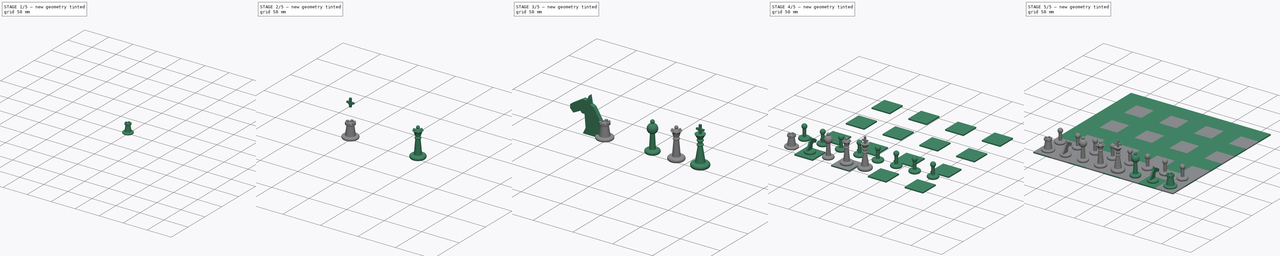
[diagram: build sequence overview — one tinted view per stage of 5, left to right]
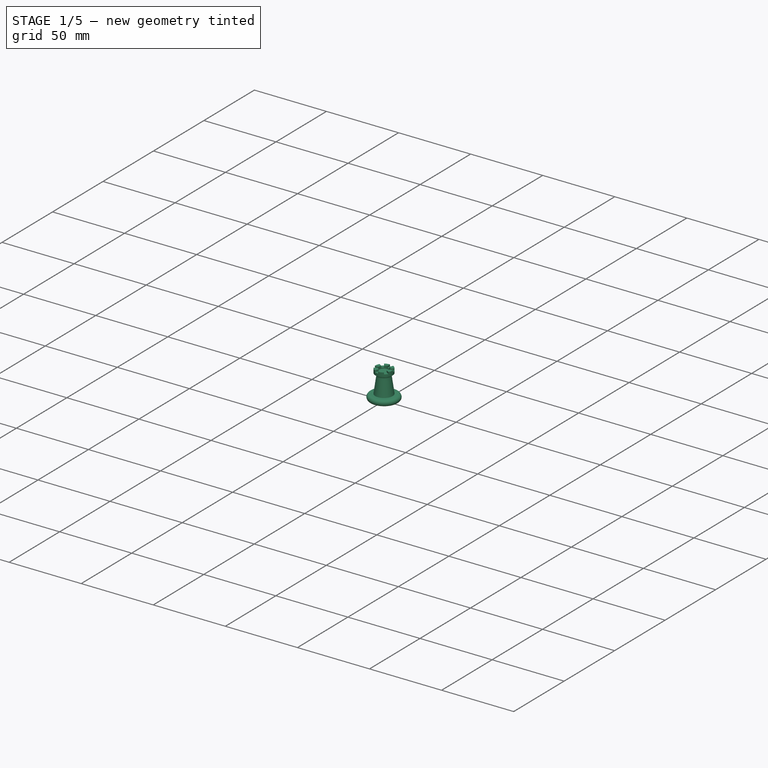
[diagram: stage 1 of 5 — iso view after this stage's code; geometry added in this stage tinted green]
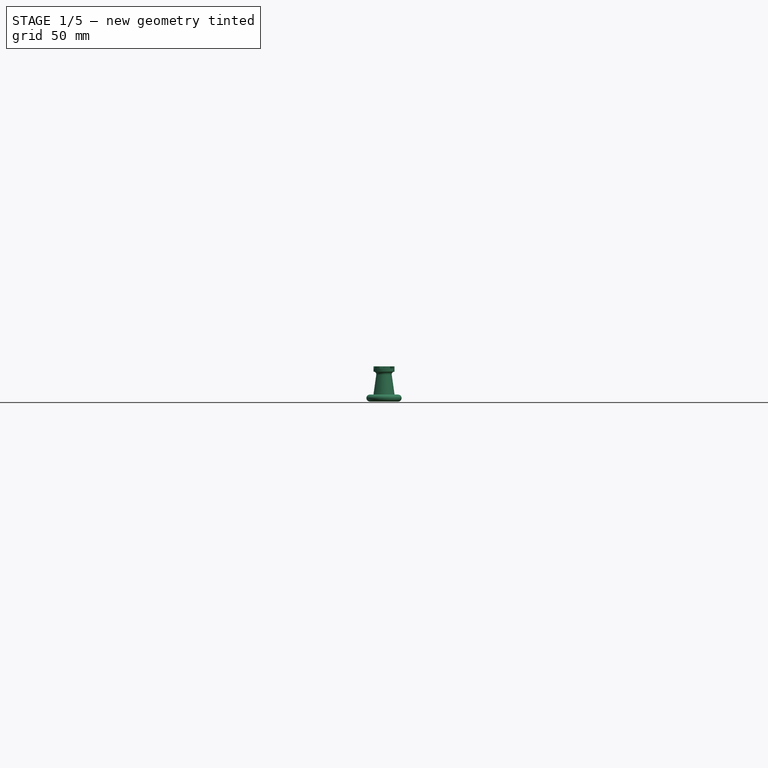
[diagram: stage 1 of 5 — front view after this stage's code; geometry added in this stage tinted green]
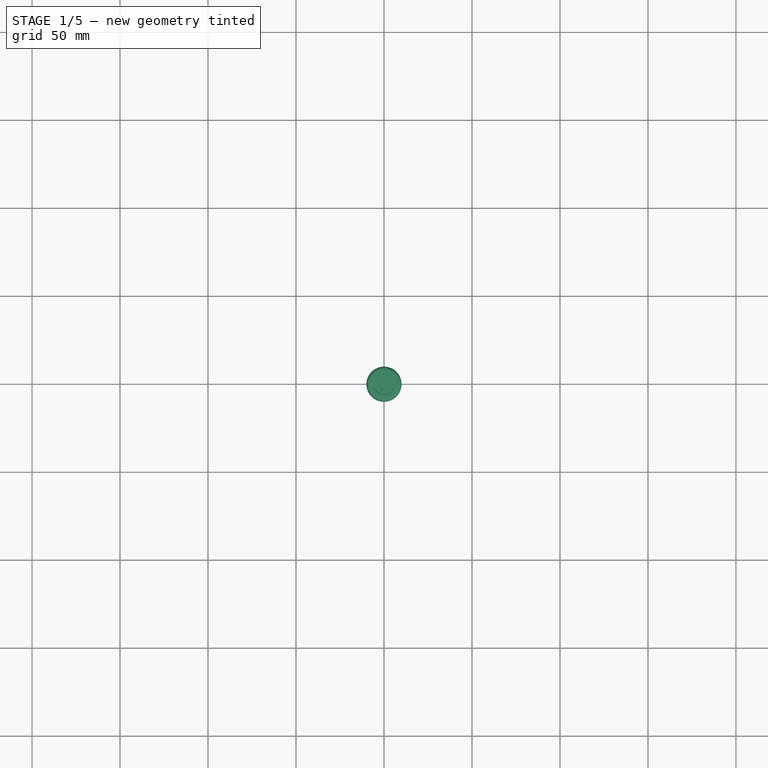
[diagram: stage 1 of 5 — top view after this stage's code; geometry added in this stage tinted green]
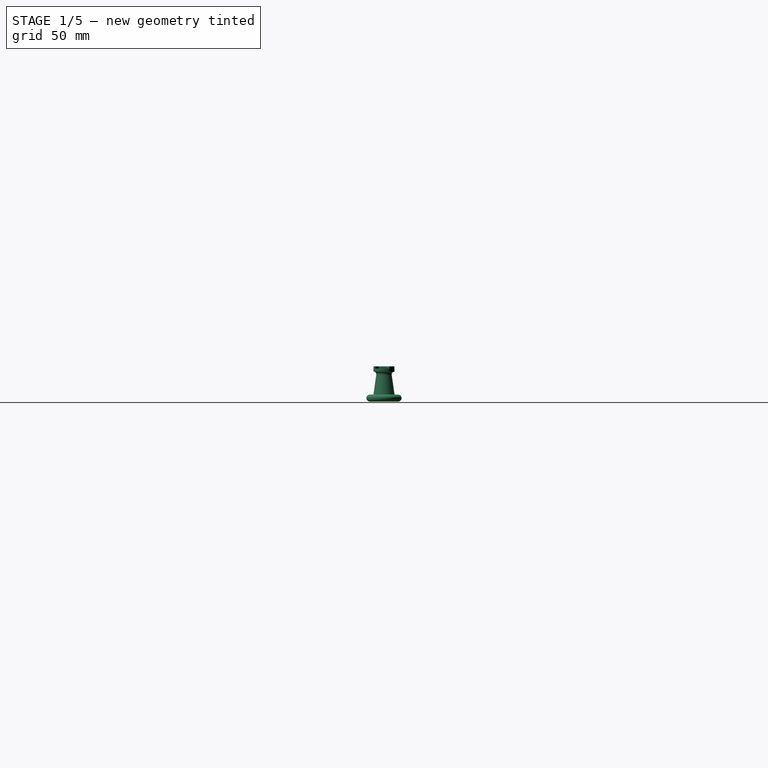
[diagram: stage 1 of 5 — right view after this stage's code; geometry added in this stage tinted green]
FCSTD DOCUMENT  (FreeCAD 0.16R6706 (Git))
Label: assembly-v001
License: All rights reserved
LicenseURL: http://en.wikipedia.org/wiki/All_rights_reserved
objects: Sketcher::SketchObject×27, Raytracing::RayFeature×10, Part::FeaturePython×10, PartDesign::Revolution×9, Raytracing::LuxFeature×9, PartDesign::Pocket×8, PartDesign::Pad×7, App::DocumentObjectGroup×7, Part::MultiFuse×4, Part::Cut×2, Raytracing::RayProject×2, Part::Cylinder×1, Part::Loft×1, Part::Extrusion×1, PartDesign::PolarPattern×1, PartDesign::Fillet×1, Part::Feature×1, Raytracing::LuxProject×1
note: 97 computed .brp shape members not serialized (recipe doc carries the construction recipe); baked Part::Feature solids carry a one-line shape summary decoded from their .brp

FEATURE [Sketcher::SketchObject] Sketch009
  Placement = pos=(0,0,4) rot=(0,0,1;0rad)
  sketch-geometry (1):
    g0: Circle CenterX=0 CenterY=0 CenterZ=0 NormalX=0 NormalY=0 NormalZ=1 Radius=6
  constraints (2):
    c: Coincident(g0,g-1)
    c: Radius(g0) = 6
FEATURE [Sketcher::SketchObject] Sketch010
  Placement = pos=(0,0,17) rot=(0,0,1;0rad)
  sketch-geometry (1):
    g0: Circle CenterX=0 CenterY=0 CenterZ=0 NormalX=0 NormalY=0 NormalZ=1 Radius=6
  constraints (2):
    c: Coincident(g0,g-1)
    c: Radius(g0) = 6
FEATURE [Sketcher::SketchObject] Sketch011
  Placement = pos=(0,0,18) rot=(0,0,1;0rad)
  sketch-geometry (1):
    g0: Circle CenterX=0 CenterY=0 CenterZ=0 NormalX=0 NormalY=0 NormalZ=1 Radius=4
  constraints (2):
    c: Coincident(g0,g-1)
    c: Radius(g0) = 4
FEATURE [Part::Loft] Loft
  Closed = false
  Ruled = false
  Sections = -> [Sketch011,Sketch009]
  Solid = true
FEATURE [Part::Extrusion] Extrude002
  Base = -> Sketch010
  Dir = (0,0,3)
  Solid = true
FEATURE [Sketcher::SketchObject] Sketch012
  Placement = pos=(0,0,20) rot=(0,0,1;0rad)
  Support = -> Extrude002 [Face3]
  sketch-geometry (1):
    g0: Circle CenterX=0 CenterY=0 CenterZ=0 NormalX=0 NormalY=0 NormalZ=1 Radius=3.5
  constraints (2):
    c: Coincident(g0,g-1)
    c: Radius(g0) = 3.5
FEATURE [PartDesign::Pocket] Pocket
  Length = 5
  Sketch = -> Sketch012
  Type = 0
FEATURE [Sketcher::SketchObject] Sketch013
  Placement = pos=(0,0,0) rot=(1,0,0;1.5708rad)
  sketch-geometry (5):
    g0: LineSegment StartX=0 StartY=0 StartZ=0 EndX=8 EndY=0 EndZ=0
    g1: LineSegment [constr] StartX=8 StartY=0 StartZ=0 EndX=8 EndY=4 EndZ=0
    g2: LineSegment StartX=8 StartY=4 StartZ=0 EndX=0 EndY=4 EndZ=0
    g3: LineSegment StartX=0 StartY=4 StartZ=0 EndX=0 EndY=0 EndZ=0
    g4: ArcOfCircle CenterX=8 CenterY=2 CenterZ=0 NormalX=0 NormalY=0 NormalZ=1 Radius=2 StartAngle=4.71239 EndAngle=7.85398
  constraints (14):
    c: Coincident(g0,g1)
    c: Coincident(g1,g2)
    c: Coincident(g2,g3)
    c: Coincident(g3,g0)
    c: Horizontal(g0)
    c: Horizontal(g2)
    c: Vertical(g1)
    c: Vertical(g3)
    c: Coincident(g0,g-1)
    c: PointOnObject(g4,g1)
    c: Coincident(g4,g1)
    c: Coincident(g4,g0)
    c: DistanceX(g2) = -8
    c: DistanceY(g3) = -4
FEATURE [PartDesign::Revolution] Revolution001006
  Angle = 360
  Axis = (0,0,1)
  Base = (0,0,0)
  Placement = pos=(0,0,0) rot=(1,0,0;1.5708rad)
  ReferenceAxis = -> Sketch013 [V_Axis]
  Sketch = -> Sketch013
FEATURE [Sketcher::SketchObject] Sketch014
  ExternalGeometry = -> [Pocket]
  Placement = pos=(0,0,20) rot=(0,0,1;0rad)
  Support = -> Pocket [Face3]
  sketch-geometry (3):
    g0: ArcOfCircle CenterX=0 CenterY=0 CenterZ=0 NormalX=0 NormalY=0 NormalZ=1 Radius=6 StartAngle=1.13446 EndAngle=1.5708
    g1: LineSegment StartX=0 StartY=0 StartZ=0 EndX=0 EndY=6 EndZ=0
    g2: LineSegment StartX=0 StartY=0 StartZ=0 EndX=2.53571 EndY=5.43785 EndZ=0
  constraints (8):
    c: Coincident(g0,g-1)
    c: PointOnObject(g0,g-3)
    c: Coincident(g1,g-1)
    c: Coincident(g1,g0)
    c: Coincident(g2,g-1)
    c: Coincident(g2,g0)
    c: Angle(g2,g1) = 0.436332
    c: Parallel(g1,g-2)
FEATURE [PartDesign::Pocket] Pocket001
  Length = 1.2
  Sketch = -> Sketch014
  Type = 0
FEATURE [PartDesign::PolarPattern] PolarPattern
  Angle = 360
  Axis = -> Sketch014 [N_Axis]
  Occurrences = 6
  Originals = -> [Pocket001]
FEATURE [Part::MultiFuse] Fusion002
  Shapes = -> [PolarPattern,Revolution001006,Loft]
FEATURE [PartDesign::Fillet] Fillet
  Base = -> Fusion002 [Edge5]
  Radius = 1.5
FEATURE [App::DocumentObjectGroup] Group002  label="queen"
  Group = -> [Fusion,Fusion004,Pocket006]
FEATURE [Sketcher::SketchObject] Sketch026
  Placement = pos=(0,0,0) rot=(1,0,0;3.14159rad)
  Support = -> Fillet [Face7]
  sketch-geometry (1):
    g0: Circle CenterX=0 CenterY=0 CenterZ=0 NormalX=0 NormalY=0 NormalZ=1 Radius=3.05
  constraints (2):
    c: Coincident(g0,g-1)
    c: Radius(g0) = 3.05
FEATURE [PartDesign::Pocket] Pocket007
  Length = 3.1
  Sketch = -> Sketch026
  Type = 0
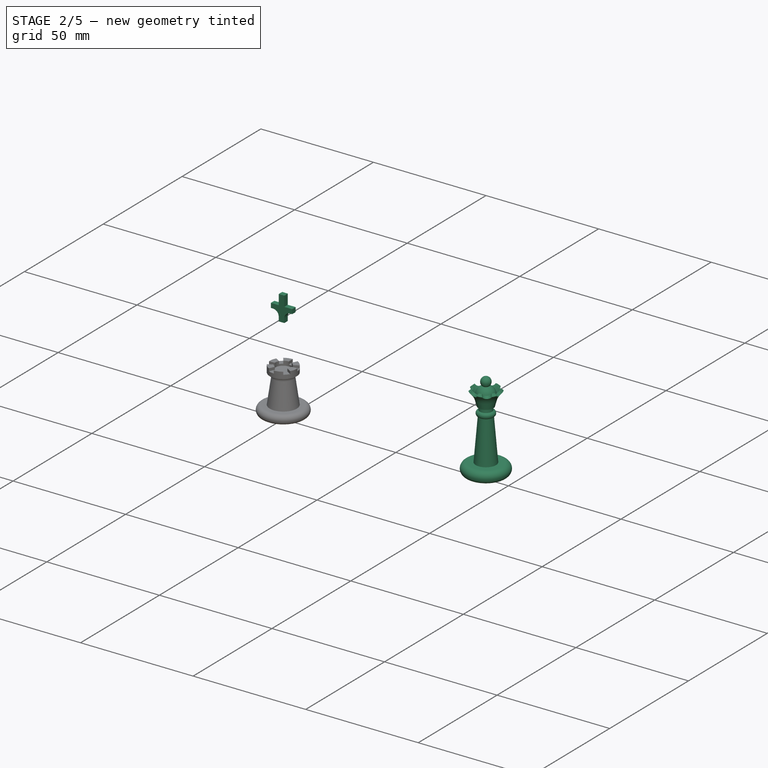
[diagram: stage 2 of 5 — iso view after this stage's code; geometry added in this stage tinted green]
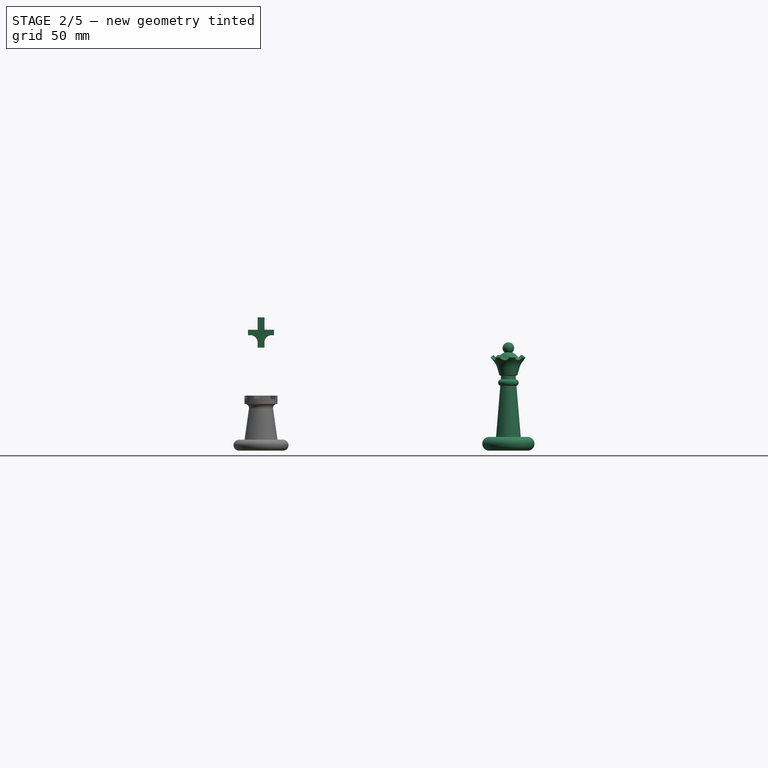
[diagram: stage 2 of 5 — front view after this stage's code; geometry added in this stage tinted green]
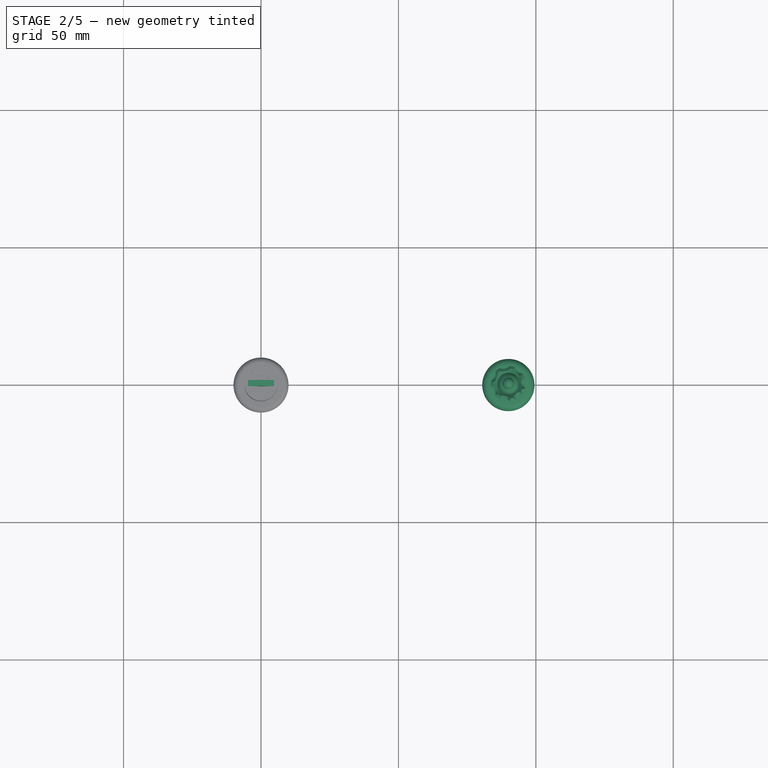
[diagram: stage 2 of 5 — top view after this stage's code; geometry added in this stage tinted green]
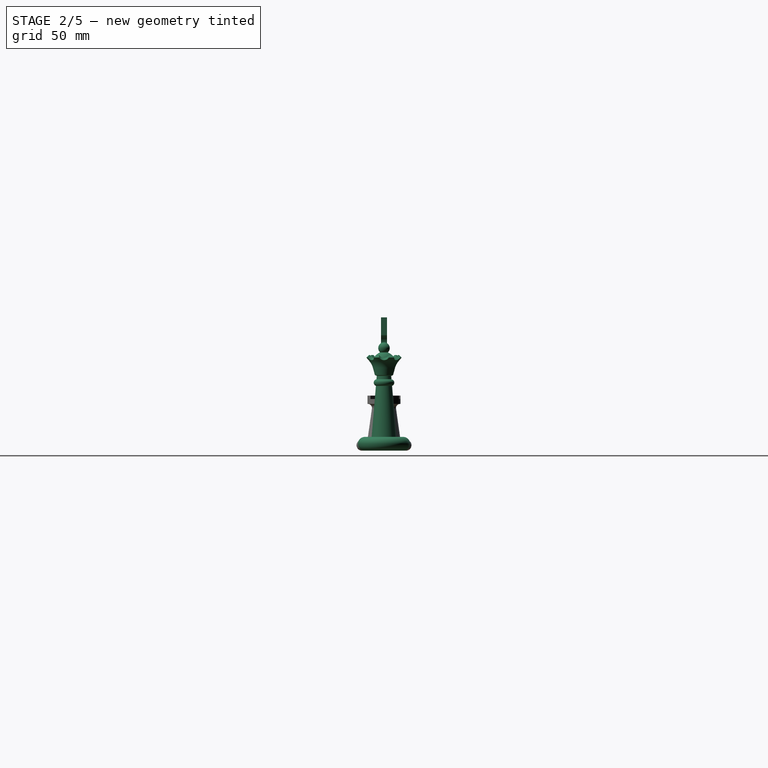
[diagram: stage 2 of 5 — right view after this stage's code; geometry added in this stage tinted green]
FEATURE [Sketcher::SketchObject] Sketch003
  Placement = pos=(0,0,0) rot=(1,0,0;1.5708rad)
  sketch-geometry (10):
    g0: LineSegment StartX=0 StartY=0 StartZ=0 EndX=7 EndY=0 EndZ=0
    g1: LineSegment [constr] StartX=7 StartY=0 StartZ=0 EndX=7 EndY=5 EndZ=0
    g2: LineSegment StartX=7 StartY=5 StartZ=0 EndX=0 EndY=5 EndZ=0
    g3: LineSegment StartX=0 StartY=5 StartZ=0 EndX=0 EndY=0 EndZ=0
    g4: LineSegment StartX=0 StartY=5 StartZ=0 EndX=4.5 EndY=5 EndZ=0
    g5: LineSegment StartX=4.5 StartY=5 StartZ=0 EndX=2.5 EndY=28.8775 EndZ=0
    g6: ArcOfCircle CenterX=7 CenterY=2.5 CenterZ=0 NormalX=0 NormalY=0 NormalZ=1 Radius=2.5 StartAngle=4.71239 EndAngle=7.85398
    g7: ArcOfCircle CenterX=0 CenterY=32 CenterZ=0 NormalX=0 NormalY=0 NormalZ=1 Radius=4 StartAngle=5.38752 EndAngle=7.49641
    g8: LineSegment StartX=0 StartY=5 StartZ=0 EndX=0 EndY=39.4122 EndZ=0
    g9: ArcOfCircle CenterX=0 CenterY=37.3122 CenterZ=0 NormalX=0 NormalY=0 NormalZ=1 Radius=2.1 StartAngle=5.44212 EndAngle=7.85398
  constraints (31):
    c: Coincident(g0,g1)
    c: Coincident(g1,g2)
    c: Coincident(g2,g3)
    c: Coincident(g3,g0)
    c: Horizontal(g0)
    c: Horizontal(g2)
    c: Vertical(g1)
    c: Vertical(g3)
    c: Coincident(g0,g-1)
    c: Coincident(g4,g5)
    c: Horizontal(g4)
    c: Coincident(g4,g2)
    c: DistanceX(g0) = 7
    c: DistanceY(g1) = 5
    c: Coincident(g6,g1)
    c: Coincident(g6,g0)
    c: PointOnObject(g6,g1)
    c: PointOnObject(g8,g-2)
    c: Radius(g7) = 4
    c: Coincident(g5,g7)
    c: DistanceX(g4,g2) = -4.5
    c: Coincident(g8,g2)
    c: Perpendicular(g7,g8)
    c: DistanceY(g-1,g7) = 32
    c: DistanceX(g8,g5) = 2.5
    c: PointOnObject(g9,g-2)
    c: Radius(g9) = 2.1
    c: PointOnObject(g9,g-2)
    c: Coincident(g7,g9)
    c: DistanceX(g7,g9) = -1.4
    c: Coincident(g9,g8)
FEATURE [PartDesign::Revolution] Revolution001002
  Angle = 360
  Axis = (0,0,1)
  Base = (0,0,0)
  Placement = pos=(0,0,0) rot=(1,0,0;1.5708rad)
  ReferenceAxis = -> Sketch003 [V_Axis]
  Reversed = true
  Sketch = -> Sketch003
FEATURE [Sketcher::SketchObject] Sketch004
  Placement = pos=(0,0,0) rot=(1,0,0;1.5708rad)
  sketch-geometry (7):
    g0: LineSegment StartX=5.45034 StartY=34.8175 StartZ=0 EndX=6.43773 EndY=33.9113 EndZ=0
    g1: LineSegment StartX=0.665482 StartY=28.4264 StartZ=0 EndX=5.45034 EndY=34.8175 EndZ=0
    g2: LineSegment StartX=5.30057 StartY=32.544 StartZ=0 EndX=6.43773 EndY=33.9113 EndZ=0
    g3: ArcOfCircle CenterX=10.3814 CenterY=28.3184 CenterZ=0 NormalX=0 NormalY=0 NormalZ=1 Radius=6.60836 StartAngle=2.44782 EndAngle=2.89671
    g4: LineSegment StartX=0.665482 StartY=28.4264 StartZ=0 EndX=1.68594 EndY=26.7963 EndZ=0
    g5: LineSegment StartX=1.68594 StartY=26.7963 StartZ=0 EndX=3.30092 EndY=27.4826 EndZ=0
    g6: LineSegment StartX=3.97015 StartY=29.9205 StartZ=0 EndX=3.30092 EndY=27.4826 EndZ=0
  constraints (21):
    c: Coincident(g1,g0)
    c: Coincident(g2,g0)
    c: Tangent(g2,g3) = 1.5708
    c: Coincident(g4,g5)
    c: DistanceX(g4) = 1.68594
    c: DistanceY(g4) = 26.7963
    c: DistanceX(g5) = 3.30092
    c: DistanceY(g5) = 27.4826
    c: DistanceX(g1) = 0.665482
    c: DistanceY(g1) = 28.4264
    c: DistanceX(g0) = 5.45034
    c: DistanceY(g0) = 34.8175
    c: DistanceX(g0) = 6.43773
    c: DistanceY(g0) = 33.9113
    c: DistanceX(g3) = 10.3814
    c: DistanceY(g3) = 28.3184
    c: Coincident(g4,g1)
    c: Coincident(g6,g3)
    c: Coincident(g6,g5)
    c: DistanceX(g3) = 3.97015
    c: DistanceY(g3) = 29.9205
FEATURE [PartDesign::Revolution] Revolution001003
  Angle = 360
  Axis = (0,0,1)
  Base = (0,0,0)
  Placement = pos=(0,0,0) rot=(1,0,0;1.5708rad)
  ReferenceAxis = -> Sketch004 [V_Axis]
  Reversed = true
  Sketch = -> Sketch004
FEATURE [Part::Cylinder] Cylinder
  Angle = 360
  Height = 4
  Placement = pos=(8,0,33.5) rot=(0,-1,0;0.855211rad)
  Radius = 2
FEATURE [Part::FeaturePython] Array002  # Draft array (typed FeaturePython)
  Angle = 360
  ArrayType = 1
  Axis = (0,0,1)
  Base = -> Cylinder
  Center = (0,0,0)
  Fuse = false
  IntervalAxis = (0,0,0)
  IntervalX = (1,0,0)
  IntervalY = (0,1,0)
  IntervalZ = (0,0,0)
  NumberPolar = 7
  NumberX = 2
  NumberY = 2
  NumberZ = 1
FEATURE [Part::Cut] Cut
  Base = -> Revolution001003
  Tool = -> Array002
FEATURE [Sketcher::SketchObject] Sketch005
  Placement = pos=(0,0,0) rot=(1,0,0;1.5708rad)
  sketch-geometry (6):
    g0: LineSegment StartX=0 StartY=0 StartZ=0 EndX=2.5 EndY=0 EndZ=0
    g1: LineSegment [constr] StartX=2.5 StartY=0 StartZ=0 EndX=2.5 EndY=26 EndZ=0
    g2: LineSegment StartX=2.5 StartY=26 StartZ=0 EndX=0 EndY=26 EndZ=0
    g3: LineSegment StartX=0 StartY=26 StartZ=0 EndX=0 EndY=0 EndZ=0
    g4: ArcOfCircle CenterX=2.5 CenterY=24.75 CenterZ=0 NormalX=0 NormalY=0 NormalZ=1 Radius=1.25 StartAngle=4.71239 EndAngle=7.85398
    g5: LineSegment StartX=2.5 StartY=23.5 StartZ=0 EndX=2.5 EndY=0 EndZ=0
  constraints (17):
    c: Coincident(g0,g1)
    c: Coincident(g1,g2)
    c: Coincident(g2,g3)
    c: Coincident(g3,g0)
    c: Horizontal(g0)
    c: Horizontal(g2)
    c: Vertical(g1)
    c: Vertical(g3)
    c: Coincident(g0,g-1)
    c: DistanceY(g3) = -26
    c: DistanceX(g2) = -2.5
    c: PointOnObject(g4,g1)
    c: Coincident(g4,g1)
    c: PointOnObject(g4,g1)
    c: DistanceY(g4,g1) = 2.5
    c: Coincident(g5,g4)
    c: Coincident(g5,g0)
FEATURE [PartDesign::Revolution] Revolution002
  Angle = 360
  Axis = (0,0,1)
  Base = (0,0,0)
  Placement = pos=(0,0,0) rot=(1,0,0;1.5708rad)
  ReferenceAxis = -> Sketch005 [V_Axis]
  Sketch = -> Sketch005
FEATURE [Part::MultiFuse] Fusion
  Placement = pos=(90,0,0) rot=(0,0,1;0rad)
  Shapes = -> [Revolution002,Cut,Revolution001002]
FEATURE [Sketcher::SketchObject] Sketch008
  Placement = pos=(0,0,0) rot=(1,0,0;1.5708rad)
  sketch-geometry (14):
    g0: LineSegment StartX=-1.25 StartY=37.5 StartZ=0 EndX=1.25 EndY=37.5 EndZ=0
    g1: LineSegment StartX=1.25 StartY=37.5 StartZ=0 EndX=1.25 EndY=39.4 EndZ=0
    g2: LineSegment StartX=3.85 StartY=42 StartZ=0 EndX=4.75 EndY=42 EndZ=0
    g3: LineSegment StartX=4.75 StartY=42 StartZ=0 EndX=4.75 EndY=44 EndZ=0
    g4: LineSegment StartX=4.75 StartY=44 StartZ=0 EndX=1.25 EndY=44 EndZ=0
    g5: LineSegment StartX=1.25 StartY=44 StartZ=0 EndX=1.25 EndY=48.5 EndZ=0
    g6: LineSegment StartX=1.25 StartY=48.5 StartZ=0 EndX=-1.25 EndY=48.5 EndZ=0
    g7: LineSegment StartX=-1.25 StartY=48.5 StartZ=0 EndX=-1.25 EndY=44 EndZ=0
    g8: LineSegment StartX=-1.25 StartY=44 StartZ=0 EndX=-4.75 EndY=44 EndZ=0
    g9: LineSegment StartX=-4.75 StartY=44 StartZ=0 EndX=-4.75 EndY=42 EndZ=0
    g10: LineSegment StartX=-4.75 StartY=42 StartZ=0 EndX=-3.85 EndY=42 EndZ=0
    g11: LineSegment StartX=-1.25 StartY=39.4 StartZ=0 EndX=-1.25 EndY=37.5 EndZ=0
    g12: ArcOfCircle CenterX=-3.85 CenterY=39.4 CenterZ=0 NormalX=0 NormalY=0 NormalZ=1 Radius=2.6 StartAngle=0 EndAngle=1.5708
    g13: ArcOfCircle CenterX=3.85 CenterY=39.4 CenterZ=0 NormalX=0 NormalY=0 NormalZ=1 Radius=2.6 StartAngle=1.5708 EndAngle=3.14159
  constraints (40):
    c: Horizontal(g0)
    c: Coincident(g0,g1)
    c: Vertical(g1)
    c: Horizontal(g2)
    c: Coincident(g2,g3)
    c: Vertical(g3)
    c: Coincident(g3,g4)
    c: Horizontal(g4)
    c: Coincident(g4,g5)
    c: Vertical(g5)
    c: Coincident(g5,g6)
    c: Horizontal(g6)
    c: Coincident(g6,g7)
    c: Vertical(g7)
    c: Coincident(g7,g8)
    c: Horizontal(g8)
    c: Coincident(g8,g9)
    c: Vertical(g9)
    c: Coincident(g9,g10)
    c: Coincident(g11,g0)
    c: Tangent(g10,g12) = 1.5708
    c: Tangent(g11,g12) = 1.5708
    c: Tangent(g2,g13) = 1.5708
    c: Tangent(g1,g13) = 1.5708
    c: Vertical(g11)
    c: Equal(g1,g11)
    c: Equal(g3,g9)
    c: Equal(g5,g7)
    c: Equal(g0,g6)
    c: Horizontal(g10)
    c: Equal(g2,g10)
    c: Equal(g8,g4)
    c: Symmetric(g0,g0,g-2)
    c: DistanceY(g-1,g0) = 37.5
    c: DistanceX(g0) = 2.5
    c: DistanceY(g3) = 2
    c: Radius(g13) = 2.6
    c: DistanceY(g4,g0) = -6.5
    c: DistanceY(g5) = 4.5
    c: DistanceX(g8) = -3.5
FEATURE [PartDesign::Pad] Pad001
  Length = 2.2
  Length2 = 100
  Midplane = true
  Placement = pos=(0,0,0) rot=(1,0,0;1.5708rad)
  Sketch = -> Sketch008
  Type = 0
FEATURE [App::DocumentObjectGroup] Group003  label="king"
  Group = -> [Fusion001,Pocket005]
FEATURE [Part::Feature] Fusion004
  shape: bbox 20.57 x 20.57 x 39.41 mm, 27 faces (baked)
FEATURE [Sketcher::SketchObject] Sketch025
  Placement = pos=(90,0,0) rot=(1,0,0;3.14159rad)
  Support = -> Fusion [Face27]
  sketch-geometry (1):
    g0: Circle CenterX=0 CenterY=0 CenterZ=0 NormalX=0 NormalY=0 NormalZ=1 Radius=3.05
  constraints (2):
    c: Coincident(g0,g-1)
    c: Radius(g0) = 3.05
FEATURE [PartDesign::Pocket] Pocket006
  Length = 3.1
  Placement = pos=(90,0,0) rot=(0,0,1;0rad)
  Sketch = -> Sketch025
  Type = 0
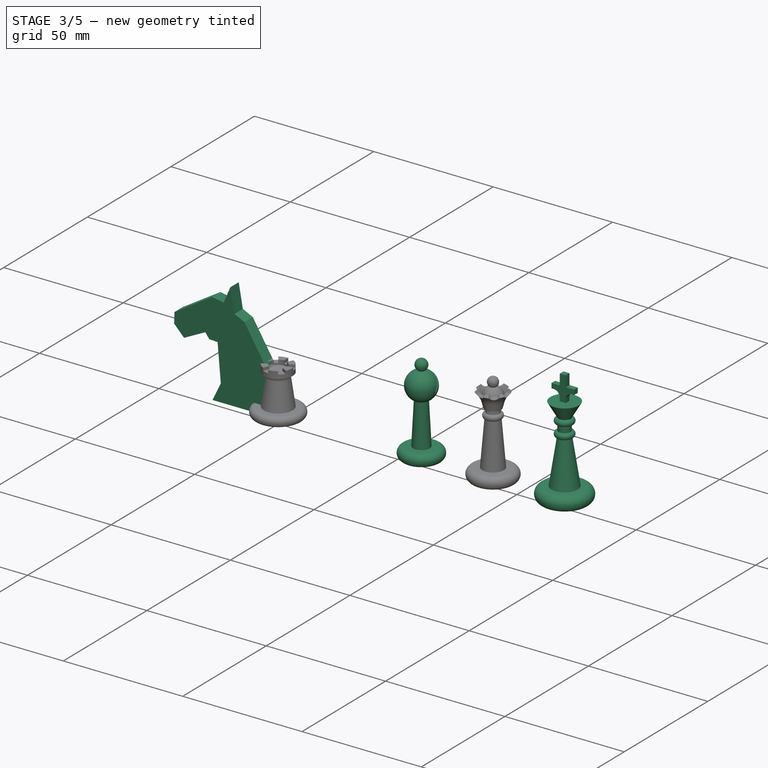
[diagram: stage 3 of 5 — iso view after this stage's code; geometry added in this stage tinted green]
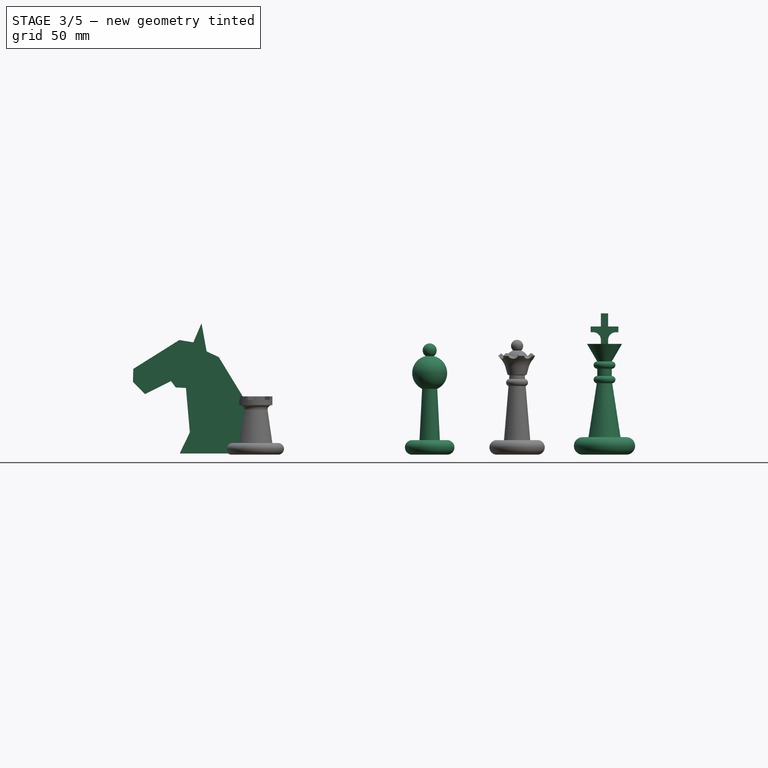
[diagram: stage 3 of 5 — front view after this stage's code; geometry added in this stage tinted green]
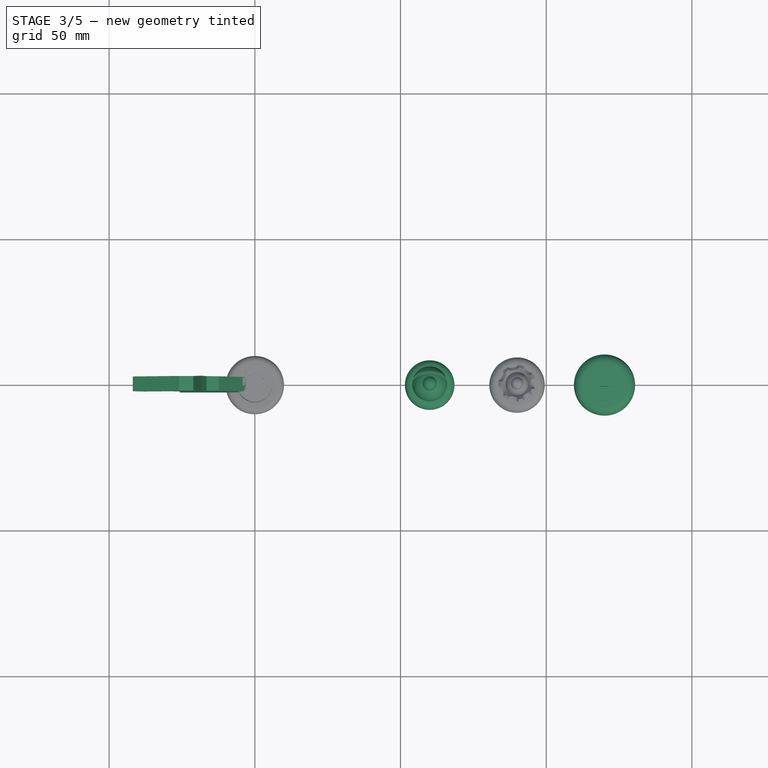
[diagram: stage 3 of 5 — top view after this stage's code; geometry added in this stage tinted green]
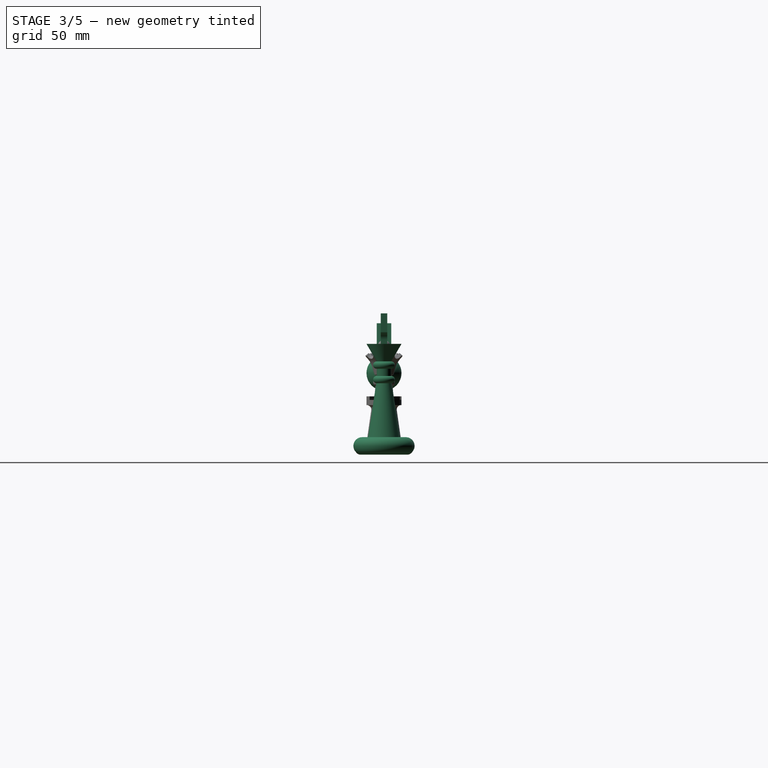
[diagram: stage 3 of 5 — right view after this stage's code; geometry added in this stage tinted green]
FEATURE [Sketcher::SketchObject] Sketch
  Placement = pos=(0,0,0) rot=(1,0,0;1.5708rad)
  sketch-geometry (10):
    g0: LineSegment StartX=0 StartY=0 StartZ=0 EndX=6 EndY=0 EndZ=0
    g1: LineSegment [constr] StartX=6 StartY=0 StartZ=0 EndX=6 EndY=5 EndZ=0
    g2: LineSegment StartX=6 StartY=5 StartZ=0 EndX=0 EndY=5 EndZ=0
    g3: LineSegment StartX=0 StartY=5 StartZ=0 EndX=0 EndY=0 EndZ=0
    g4: LineSegment StartX=0 StartY=5 StartZ=0 EndX=3.5 EndY=5 EndZ=0
    g5: LineSegment StartX=3.5 StartY=5 StartZ=0 EndX=2.6 EndY=22.5926 EndZ=0
    g6: ArcOfCircle CenterX=6 CenterY=2.5 CenterZ=0 NormalX=0 NormalY=0 NormalZ=1 Radius=2.5 StartAngle=4.71239 EndAngle=7.85398
    g7: ArcOfCircle CenterX=0 CenterY=28 CenterZ=0 NormalX=0 NormalY=0 NormalZ=1 Radius=6 StartAngle=5.16058 EndAngle=7.61848
    g8: LineSegment StartX=0 StartY=5 StartZ=0 EndX=0 EndY=38.1837 EndZ=0
    g9: ArcOfCircle CenterX=0 CenterY=35.7837 CenterZ=0 NormalX=0 NormalY=0 NormalZ=1 Radius=2.4 StartAngle=5.33522 EndAngle=7.85398
  constraints (31):
    c: Coincident(g0,g1)
    c: Coincident(g1,g2)
    c: Coincident(g2,g3)
    c: Coincident(g3,g0)
    c: Horizontal(g0)
    c: Horizontal(g2)
    c: Vertical(g1)
    c: Vertical(g3)
    c: Coincident(g0,g-1)
    c: Coincident(g4,g5)
    c: Horizontal(g4)
    c: Coincident(g4,g2)
    c: DistanceX(g0) = 6
    c: DistanceY(g1) = 5
    c: Coincident(g6,g1)
    c: Coincident(g6,g0)
    c: PointOnObject(g6,g1)
    c: PointOnObject(g8,g-2)
    c: Radius(g7) = 6
    c: Coincident(g5,g7)
    c: DistanceX(g4,g2) = -3.5
    c: Coincident(g8,g2)
    c: Perpendicular(g7,g8)
    c: DistanceY(g-1,g7) = 28
    c: DistanceX(g8,g5) = 2.6
    c: PointOnObject(g9,g-2)
    c: Radius(g9) = 2.4
    c: PointOnObject(g9,g-2)
    c: Coincident(g7,g9)
    c: DistanceX(g7,g9) = -1.4
    c: Coincident(g9,g8)
FEATURE [PartDesign::Revolution] Revolution
  Angle = 360
  Axis = (0,0,1)
  Base = (0,0,0)
  Placement = pos=(0,0,0) rot=(1,0,0;1.5708rad)
  ReferenceAxis = -> Sketch [V_Axis]
  Reversed = true
  Sketch = -> Sketch
FEATURE [Sketcher::SketchObject] Sketch001
  Placement = pos=(0,0,0) rot=(1,0,0;1.5708rad)
  sketch-geometry (5):
    g0: LineSegment [constr] StartX=0 StartY=0 StartZ=0 EndX=0 EndY=26 EndZ=0
    g1: LineSegment StartX=0 StartY=26 StartZ=0 EndX=0 EndY=27.5 EndZ=0
    g2: LineSegment StartX=0 StartY=27.5 StartZ=0 EndX=20 EndY=62.141 EndZ=0
    g3: LineSegment StartX=20 StartY=62.141 StartZ=0 EndX=20 EndY=54.563 EndZ=0
    g4: LineSegment StartX=20 StartY=54.563 StartZ=0 EndX=0 EndY=26 EndZ=0
  constraints (14):
    c: Coincident(g0,g-1)
    c: PointOnObject(g0,g-2)
    c: DistanceY(g0) = 26
    c: Coincident(g0,g1)
    c: PointOnObject(g1,g-2)
    c: Coincident(g1,g2)
    c: Coincident(g2,g3)
    c: Coincident(g3,g4)
    c: Coincident(g4,g1)
    c: Vertical(g3)
    c: Angle(g4,g1) = 0.610865
    c: Angle(g1,g2) = 2.61799
    c: DistanceY(g1,g0) = -1.5
    c: DistanceX(g3,g1) = -20
FEATURE [PartDesign::Pad] Pad
  Length = 20
  Length2 = 100
  Midplane = true
  Placement = pos=(0,0,0) rot=(1,0,0;1.5708rad)
  Sketch = -> Sketch001
  Type = 0
FEATURE [Part::Cut] Cut001
  Base = -> Revolution
  Placement = pos=(60,0,0) rot=(0,0,1;1.5708rad)
  Tool = -> Pad
FEATURE [Sketcher::SketchObject] Sketch006
  Placement = pos=(0,0,0) rot=(1,0,0;1.5708rad)
  sketch-geometry (11):
    g0: LineSegment StartX=0 StartY=0 StartZ=0 EndX=7.5 EndY=0 EndZ=0
    g1: LineSegment [constr] StartX=7.5 StartY=0 StartZ=0 EndX=7.5 EndY=6 EndZ=0
    g2: LineSegment StartX=7.5 StartY=6 StartZ=0 EndX=0 EndY=6 EndZ=0
    g3: LineSegment StartX=0 StartY=6 StartZ=0 EndX=0 EndY=0 EndZ=0
    g4: LineSegment StartX=0 StartY=6 StartZ=0 EndX=5.5 EndY=6 EndZ=0
    g5: LineSegment StartX=5.5 StartY=6 StartZ=0 EndX=2.5 EndY=25.5 EndZ=0
    g6: ArcOfCircle CenterX=7.5 CenterY=3 CenterZ=0 NormalX=0 NormalY=0 NormalZ=1 Radius=3 StartAngle=4.71239 EndAngle=7.85398
    g7: LineSegment StartX=0 StartY=6 StartZ=0 EndX=0 EndY=38 EndZ=0
    g8: LineSegment StartX=0 StartY=38 StartZ=0 EndX=6 EndY=38 EndZ=0
    g9: LineSegment StartX=6 StartY=38 StartZ=0 EndX=2.5 EndY=32 EndZ=0
    g10: LineSegment StartX=2.5 StartY=32 StartZ=0 EndX=2.5 EndY=25.5 EndZ=0
  constraints (31):
    c: Coincident(g0,g1)
    c: Coincident(g1,g2)
    c: Coincident(g2,g3)
    c: Coincident(g3,g0)
    c: Horizontal(g0)
    c: Horizontal(g2)
    c: Vertical(g1)
    c: Vertical(g3)
    c: Coincident(g0,g-1)
    c: Coincident(g4,g5)
    c: Horizontal(g4)
    c: Coincident(g4,g2)
    c: DistanceX(g0) = 7.5
    c: DistanceY(g1) = 6
    c: Coincident(g6,g1)
    c: Coincident(g6,g0)
    c: PointOnObject(g6,g1)
    c: PointOnObject(g7,g-2)
    c: DistanceX(g4,g2) = -5.5
    c: Coincident(g7,g2)
    c: DistanceX(g7,g5) = 2.5
    c: Coincident(g7,g8)
    c: Horizontal(g8)
    c: Coincident(g8,g9)
    c: Coincident(g9,g10)
    c: Coincident(g10,g5)
    c: Vertical(g10)
    c: DistanceY(g9,g8) = 6
    c: DistanceY(g10) = -6.5
    c: DistanceY(g7) = 32
    c: DistanceX(g8) = 6
FEATURE [PartDesign::Revolution] Revolution001004
  Angle = 360
  Axis = (0,0,1)
  Base = (0,0,0)
  Placement = pos=(0,0,0) rot=(1,0,0;1.5708rad)
  ReferenceAxis = -> Sketch006 [V_Axis]
  Reversed = true
  Sketch = -> Sketch006
FEATURE [Sketcher::SketchObject] Sketch007
  Placement = pos=(0,0,0) rot=(1,0,0;1.5708rad)
  sketch-geometry (7):
    g0: LineSegment StartX=0 StartY=0 StartZ=0 EndX=2.5 EndY=0 EndZ=0
    g1: LineSegment StartX=2.5 StartY=32 StartZ=0 EndX=0 EndY=32 EndZ=0
    g2: LineSegment StartX=0 StartY=32 StartZ=0 EndX=0 EndY=0 EndZ=0
    g3: ArcOfCircle CenterX=2.5 CenterY=30.75 CenterZ=0 NormalX=0 NormalY=0 NormalZ=1 Radius=1.25 StartAngle=4.71239 EndAngle=7.85398
    g4: ArcOfCircle CenterX=2.5 CenterY=25.75 CenterZ=0 NormalX=0 NormalY=0 NormalZ=1 Radius=1.25 StartAngle=4.71239 EndAngle=7.85398
    g5: LineSegment StartX=2.5 StartY=29.5 StartZ=0 EndX=2.5 EndY=27 EndZ=0
    g6: LineSegment StartX=2.5 StartY=24.5 StartZ=0 EndX=2.5 EndY=0 EndZ=0
  constraints (22):
    c: Coincident(g1,g2)
    c: Coincident(g2,g0)
    c: Horizontal(g0)
    c: Horizontal(g1)
    c: Vertical(g2)
    c: Coincident(g0,g-1)
    c: DistanceY(g2) = -32
    c: DistanceX(g1) = -2.5
    c: DistanceY(g3,g1) = 2.5
    c: DistanceY(g4,g4) = 2.5
    c: DistanceY(g4,g3) = 5
    c: Coincident(g5,g3)
    c: Coincident(g5,g4)
    c: Vertical(g5)
    c: Coincident(g6,g4)
    c: Coincident(g6,g0)
    c: Vertical(g6)
    c: Coincident(g3,g1)
    c: DistanceX(g1,g3) = 0
    c: DistanceX(g4,g4) = 0
    c: DistanceX(g4,g1) = 0
    c: DistanceX(g3,g1) = 0
FEATURE [PartDesign::Revolution] Revolution001005
  Angle = 360
  Axis = (0,0,1)
  Base = (0,0,0)
  Placement = pos=(0,0,0) rot=(1,0,0;1.5708rad)
  ReferenceAxis = -> Sketch007 [V_Axis]
  Sketch = -> Sketch007
FEATURE [Part::MultiFuse] Fusion001
  Placement = pos=(120,0,0) rot=(0,0,1;0rad)
  Shapes = -> [Pad001,Revolution001005,Revolution001004]
FEATURE [Sketcher::SketchObject] Sketch015
  Placement = pos=(-7,0,14.5) rot=(1,0,0;1.5708rad)
  sketch-geometry (16):
    g0: LineSegment StartX=-34.7137 StartY=14.9423 StartZ=0 EndX=-18.9249 EndY=24.8437 EndZ=0
    g1: LineSegment StartX=-18.9249 StartY=24.8437 StartZ=0 EndX=-14.108 EndY=24.0409 EndZ=0
    g2: LineSegment StartX=-14.108 StartY=24.0409 StartZ=0 EndX=-11.2981 EndY=30.5972 EndZ=0
    g3: LineSegment StartX=-11.2981 StartY=30.5972 StartZ=0 EndX=-9.55868 EndY=20.9634 EndZ=0
    g4: LineSegment StartX=-9.55868 StartY=20.9634 StartZ=0 EndX=-5.38225 EndY=18.974 EndZ=0
    g5: LineSegment StartX=-34.7137 StartY=14.9423 StartZ=0 EndX=-34.8475 EndY=10.5268 EndZ=0
    g6: LineSegment StartX=-34.8475 StartY=10.5268 StartZ=0 EndX=-30.7066 EndY=6.24505 EndZ=0
    g7: LineSegment StartX=-30.7066 StartY=6.24505 StartZ=0 EndX=-21.7905 EndY=10.7638 EndZ=0
    g8: LineSegment StartX=-21.7905 StartY=10.7638 StartZ=0 EndX=-20.1473 EndY=8.57287 EndZ=0
    g9: LineSegment StartX=-20.1473 StartY=8.57287 StartZ=0 EndX=-16.6502 EndY=8.3859 EndZ=0
    g10: LineSegment StartX=-16.6502 StartY=8.3859 StartZ=0 EndX=-15.3122 EndY=-6.86764 EndZ=0
    g11: LineSegment StartX=-5.38225 StartY=18.974 StartZ=0 EndX=3.68095 EndY=4.13555 EndZ=0
    g12: LineSegment StartX=6.18941 StartY=-3.14334 StartZ=0 EndX=7.45899 EndY=-14.093 EndZ=0
    g13: LineSegment StartX=7.45899 StartY=-14.093 StartZ=0 EndX=-18.7911 EndY=-14.093 EndZ=0
    g14: LineSegment StartX=-18.7911 StartY=-14.093 StartZ=0 EndX=-15.3122 EndY=-6.86764 EndZ=0
    g15: ArcOfCircle CenterX=-11.6162 CenterY=-5.20784 CenterZ=0 NormalX=0 NormalY=0 NormalZ=1 Radius=17.9249 StartAngle=0.115431 EndAngle=0.548318
  constraints (47):
    c: Coincident(g0,g1)
    c: Coincident(g1,g2)
    c: Coincident(g2,g3)
    c: Coincident(g3,g4)
    c: Coincident(g0,g5)
    c: Coincident(g5,g6)
    c: Coincident(g6,g7)
    c: Coincident(g7,g8)
    c: Coincident(g8,g9)
    c: Coincident(g9,g10)
    c: Coincident(g12,g13)
    c: Horizontal(g13)
    c: Coincident(g13,g14)
    c: Coincident(g14,g10)
    c: Tangent(g11,g15) = 1.5708
    c: Tangent(g12,g15) = 1.5708
    c: DistanceX(g13) = -18.7911
    c: DistanceY(g13) = -14.093
    c: DistanceX(g11) = -5.38225
    c: DistanceY(g11) = 18.974
    c: DistanceX(g2) = -11.2981
    c: DistanceY(g2) = 30.5972
    c: DistanceX(g1) = -14.108
    c: DistanceY(g1) = 24.0409
    c: DistanceX(g0) = -18.9249
    c: DistanceY(g0) = 24.8437
    c: DistanceX(g0) = -34.7137
    c: DistanceY(g0) = 14.9423
    c: DistanceX(g5) = -34.8475
    c: DistanceY(g5) = 10.5268
    c: DistanceX(g6) = -30.7066
    c: DistanceY(g6) = 6.24505
    c: DistanceX(g11) = 3.68095
    c: DistanceY(g11) = 4.13555
    c: Coincident(g4,g11)
    c: DistanceX(g3) = -9.55868
    c: DistanceY(g3) = 20.9634
    c: DistanceX(g7) = -21.7905
    c: DistanceY(g7) = 10.7638
    c: DistanceX(g8) = -20.1473
    c: DistanceY(g8) = 8.57287
    c: DistanceX(g9) = -16.6502
    c: DistanceY(g9) = 8.3859
    c: DistanceX(g10) = -15.3122
    c: DistanceY(g10) = -6.86764
    c: DistanceX(g12) = 7.45899
    c: DistanceX(g15) = -11.6162
FEATURE [PartDesign::Pad] Pad002
  Length = 5
  Length2 = 100
  Midplane = true
  Placement = pos=(-7,0,14.5) rot=(1,0,0;1.5708rad)
  Sketch = -> Sketch015
  Type = 0
FEATURE [App::DocumentObjectGroup] Group005  label="knight"
  Group = -> [Pad002,Fusion003,Array004,Pocket003]
FEATURE [Raytracing::LuxFeature] Array004_View001
  Result = <blob: 91548 chars omitted>
  Source = -> Array004
  Transparency = 0
FEATURE [Raytracing::RayFeature] Array004_View
  Result = <blob: 129379 chars omitted>
  Source = -> Array004
  Transparency = 0
FEATURE [Sketcher::SketchObject] Sketch023
  Placement = pos=(60,0,0) rot=(0.707107,0.707107,0;3.14159rad)
  Support = -> Cut001 [Face9]
  sketch-geometry (1):
    g0: Circle CenterX=0 CenterY=0 CenterZ=0 NormalX=0 NormalY=0 NormalZ=1 Radius=3.05
  constraints (2):
    c: Coincident(g0,g-1)
    c: Radius(g0) = 3.05
FEATURE [PartDesign::Pocket] Pocket004
  Length = 3.1
  Placement = pos=(60,0,0) rot=(0,0,1;1.5708rad)
  Sketch = -> Sketch023
  Type = 0
FEATURE [App::DocumentObjectGroup] Group  label="Bish"
  Group = -> [PovProject,Cut001,Array001,Pocket004]
FEATURE [Raytracing::LuxFeature] Array001_View001
  Result = <blob: 168300 chars omitted>
  Source = -> Array001
  Transparency = 0
FEATURE [Raytracing::RayFeature] Array001_View
  Result = <blob: 220710 chars omitted>
  Source = -> Array001
  Transparency = 0
FEATURE [Sketcher::SketchObject] Sketch024
  Placement = pos=(120,0,0) rot=(1,0,0;3.14159rad)
  Support = -> Fusion001 [Face24]
  sketch-geometry (1):
    g0: Circle CenterX=0 CenterY=0 CenterZ=0 NormalX=0 NormalY=0 NormalZ=1 Radius=3.05
  constraints (2):
    c: Coincident(g0,g-1)
    c: Radius(g0) = 3.05
FEATURE [PartDesign::Pocket] Pocket005
  Length = 3.1
  Placement = pos=(120,0,0) rot=(0,0,1;0rad)
  Sketch = -> Sketch024
  Type = 0
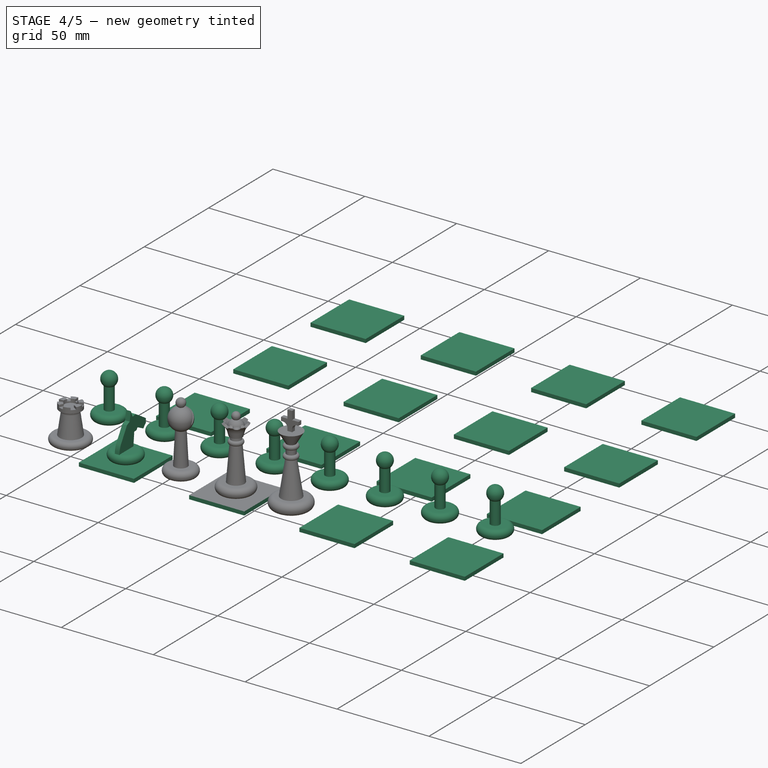
[diagram: stage 4 of 5 — iso view after this stage's code; geometry added in this stage tinted green]
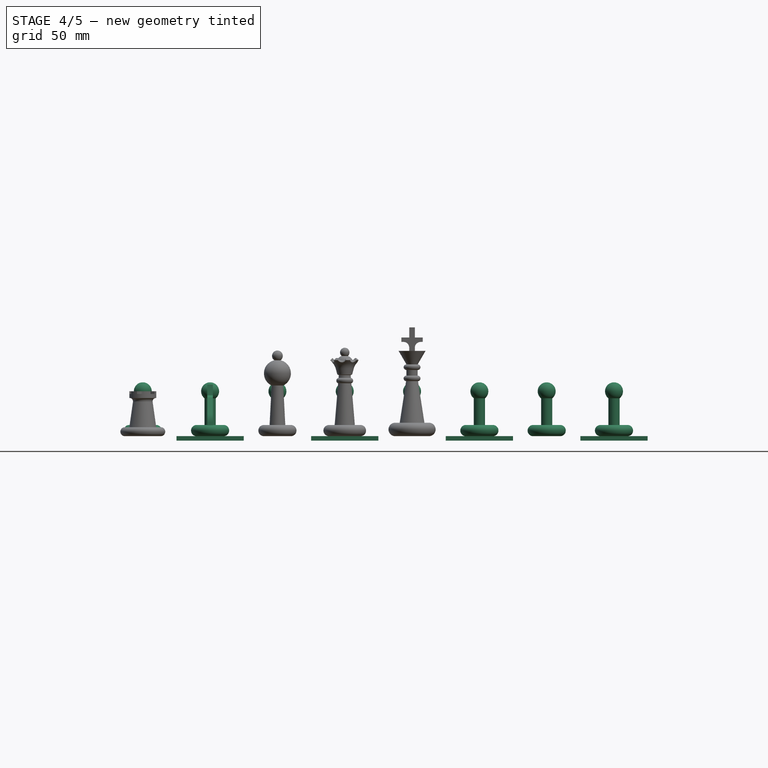
[diagram: stage 4 of 5 — front view after this stage's code; geometry added in this stage tinted green]
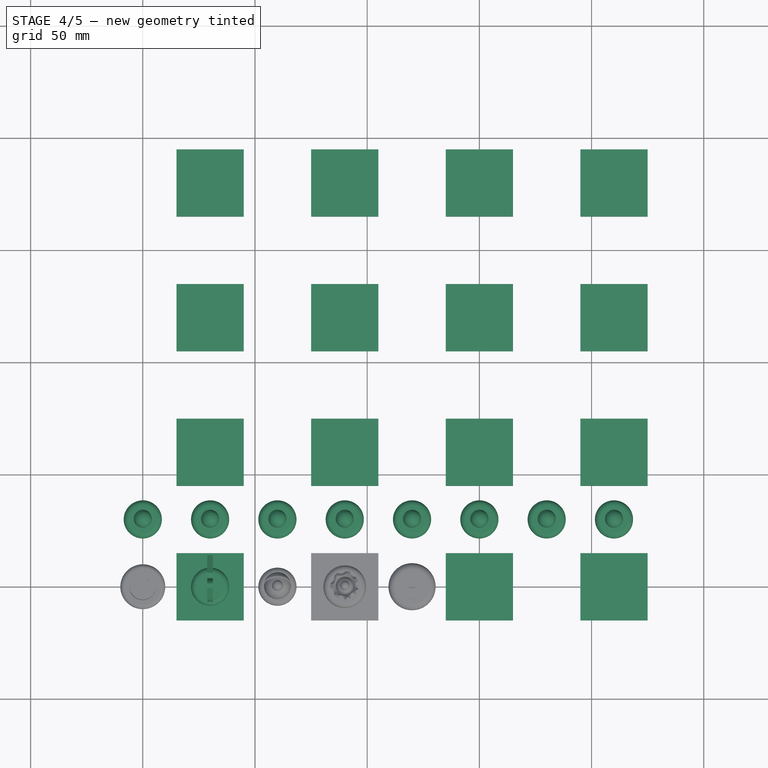
[diagram: stage 4 of 5 — top view after this stage's code; geometry added in this stage tinted green]
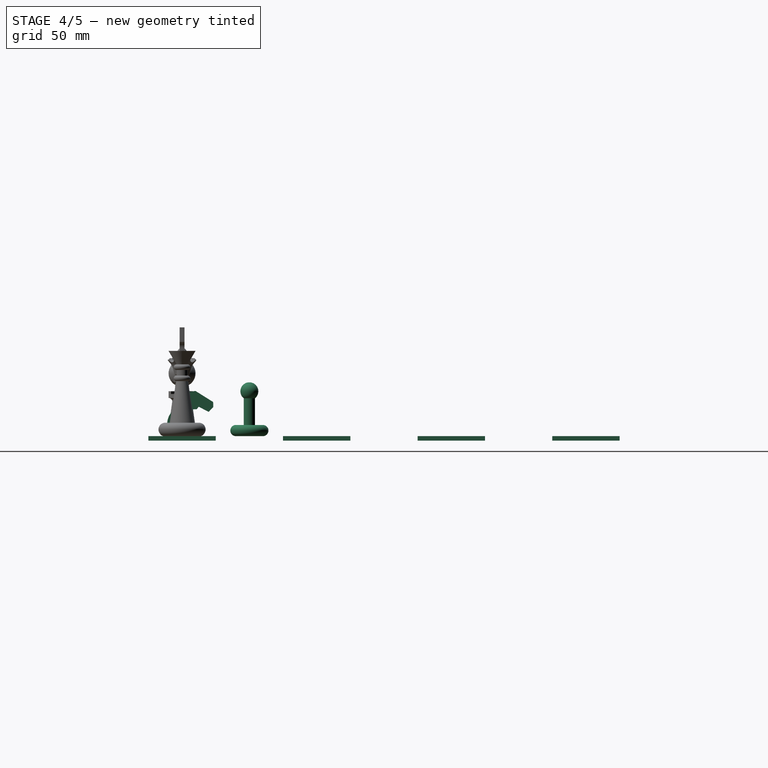
[diagram: stage 4 of 5 — right view after this stage's code; geometry added in this stage tinted green]
FEATURE [Raytracing::RayFeature] Cut001_View
  Result = <blob: 101358 chars omitted>
  Source = -> Cut001
  Transparency = 0
FEATURE [Raytracing::RayProject] PovProject
  Camera = // declares positon and view direction\n\n// Generated by FreeCAD (http://www.freecadweb.org/)\n#declare cam_location =  <19.9067,9.18161,-78.7549>;\n#declare cam_look_at  = <10.9926,18.1502,15.4793>;\n#declare cam_sky      = <0.0221975,0.995452,-0.0926409>;\n#declare cam_angle    = 45; \ncamera {\n  location  cam_location\n  look_at   cam_look_at\n  sky       cam_sky\n  angle     cam_angle \n  right x*800/600\n}
  Group = -> [Cut001_View]
FEATURE [Sketcher::SketchObject] Sketch002
  Placement = pos=(0,0,0) rot=(1,0,0;1.5708rad)
  sketch-geometry (9):
    g0: LineSegment StartX=0 StartY=0 StartZ=0 EndX=6 EndY=0 EndZ=0
    g1: LineSegment [constr] StartX=6 StartY=0 StartZ=0 EndX=6 EndY=5 EndZ=0
    g2: LineSegment StartX=6 StartY=5 StartZ=0 EndX=0 EndY=5 EndZ=0
    g3: LineSegment StartX=0 StartY=5 StartZ=0 EndX=0 EndY=0 EndZ=0
    g4: LineSegment StartX=0 StartY=5 StartZ=0 EndX=2.5 EndY=5 EndZ=0
    g5: LineSegment StartX=2.5 StartY=5 StartZ=0 EndX=2.5 EndY=16.8775 EndZ=0
    g6: ArcOfCircle CenterX=6 CenterY=2.5 CenterZ=0 NormalX=0 NormalY=0 NormalZ=1 Radius=2.5 StartAngle=4.71239 EndAngle=7.85398
    g7: ArcOfCircle CenterX=0 CenterY=20 CenterZ=0 NormalX=0 NormalY=0 NormalZ=1 Radius=4 StartAngle=5.38752 EndAngle=7.85398
    g8: LineSegment StartX=0 StartY=5 StartZ=0 EndX=0 EndY=24 EndZ=0
  constraints (26):
    c: Coincident(g0,g1)
    c: Coincident(g1,g2)
    c: Coincident(g2,g3)
    c: Coincident(g3,g0)
    c: Horizontal(g0)
    c: Horizontal(g2)
    c: Vertical(g1)
    c: Vertical(g3)
    c: Coincident(g0,g-1)
    c: Coincident(g4,g5)
    c: Horizontal(g4)
    c: Vertical(g5)
    c: Coincident(g4,g2)
    c: DistanceX(g0) = 6
    c: DistanceY(g1) = 5
    c: Coincident(g6,g1)
    c: Coincident(g6,g0)
    c: PointOnObject(g6,g1)
    c: PointOnObject(g7,g-2)
    c: Radius(g7) = 4
    c: Coincident(g5,g7)
    c: DistanceX(g4,g2) = -2.5
    c: Coincident(g8,g2)
    c: Coincident(g8,g7)
    c: Perpendicular(g7,g8)
    c: DistanceY(g-1,g7) = 20
FEATURE [PartDesign::Revolution] Revolution001
  Angle = 360
  Axis = (0,0,1)
  Base = (0,0,0)
  Placement = pos=(0,0,0) rot=(1,0,0;1.5708rad)
  ReferenceAxis = -> Sketch002 [V_Axis]
  Reversed = true
  Sketch = -> Sketch002
FEATURE [Sketcher::SketchObject] Sketch016
  Placement = pos=(0,0,0) rot=(1,0,0;1.5708rad)
  sketch-geometry (7):
    g0: LineSegment StartX=0 StartY=0 StartZ=0 EndX=6 EndY=0 EndZ=0
    g1: LineSegment [constr] StartX=6 StartY=0 StartZ=0 EndX=6 EndY=5 EndZ=0
    g2: LineSegment StartX=6 StartY=5 StartZ=0 EndX=0 EndY=5 EndZ=0
    g3: LineSegment StartX=0 StartY=5 StartZ=0 EndX=0 EndY=0 EndZ=0
    g4: LineSegment StartX=0 StartY=5 StartZ=0 EndX=3.5 EndY=5 EndZ=0
    g5: ArcOfCircle CenterX=6 CenterY=2.5 CenterZ=0 NormalX=0 NormalY=0 NormalZ=1 Radius=2.5 StartAngle=4.71239 EndAngle=7.85398
    g6: LineSegment StartX=0 StartY=5 StartZ=0 EndX=0 EndY=0 EndZ=0
  constraints (19):
    c: Coincident(g0,g1)
    c: Coincident(g1,g2)
    c: Coincident(g2,g3)
    c: Coincident(g3,g0)
    c: Horizontal(g0)
    c: Horizontal(g2)
    c: Vertical(g1)
    c: Vertical(g3)
    c: Coincident(g0,g-1)
    c: Horizontal(g4)
    c: Coincident(g4,g2)
    c: DistanceX(g0) = 6
    c: DistanceY(g1) = 5
    c: Coincident(g5,g1)
    c: Coincident(g5,g0)
    c: PointOnObject(g5,g1)
    c: DistanceX(g4,g2) = -3.5
    c: Coincident(g6,g2)
    c: Coincident(g6,g-1)
FEATURE [PartDesign::Revolution] Revolution001007
  Angle = 360
  Axis = (0,0,1)
  Base = (0,0,0)
  Placement = pos=(0,0,0) rot=(1,0,0;1.5708rad)
  ReferenceAxis = -> Sketch016 [V_Axis]
  Reversed = true
  Sketch = -> Sketch016
FEATURE [Part::FeaturePython] Scale  # Draft clone (typed FeaturePython)
  Objects = -> [Pad002]
  Placement = pos=(0,0,15) rot=(1,0,0;1.5708rad)
  Scale = (0.5,0.5,0.5)
FEATURE [Part::MultiFuse] Fusion003
  Placement = pos=(30,0,0) rot=(0,0,-1;1.5708rad)
  Shapes = -> [Revolution001007,Scale]
FEATURE [Sketcher::SketchObject] Sketch020
  sketch-geometry (4):
    g0: LineSegment StartX=45 StartY=-15 StartZ=0 EndX=15 EndY=-15 EndZ=0
    g1: LineSegment StartX=15 StartY=-15 StartZ=0 EndX=15 EndY=15 EndZ=0
    g2: LineSegment StartX=15 StartY=15 StartZ=0 EndX=45 EndY=15 EndZ=0
    g3: LineSegment StartX=45 StartY=15 StartZ=0 EndX=45 EndY=-15 EndZ=0
  constraints (12):
    c: Coincident(g0,g1)
    c: Coincident(g1,g2)
    c: Coincident(g2,g3)
    c: Coincident(g3,g0)
    c: Horizontal(g0)
    c: Horizontal(g2)
    c: Vertical(g1)
    c: Vertical(g3)
    c: Equal(g2,g1)
    c: DistanceX(g2,g2) = 30
    c: DistanceY(g-1,g1) = 15
    c: DistanceX(g-1,g0) = 15
FEATURE [PartDesign::Pad] Pad006
  Length = 2
  Length2 = 100
  Reversed = true
  Sketch = -> Sketch020
  Type = 0
FEATURE [Part::FeaturePython] Array008  label="white_sq_offset"  # Draft array (typed FeaturePython)
  Angle = 360
  ArrayType = 0
  Axis = (0,0,1)
  Base = -> Pad006
  Center = (0,0,0)
  Fuse = false
  IntervalAxis = (0,0,0)
  IntervalX = (60,0,0)
  IntervalY = (0,60,0)
  IntervalZ = (0,0,0)
  NumberPolar = 1
  NumberX = 4
  NumberY = 4
  NumberZ = 1
FEATURE [App::DocumentObjectGroup] Group006  label="board"
  Group = -> [Pad003,Array005,Array006,Array007,Array008]
FEATURE [Raytracing::LuxFeature] Array005_View001
  Result = <blob: 9389 chars omitted>
  Source = -> Array005
  Transparency = 0
FEATURE [Raytracing::LuxFeature] Array006_View001
  Result = <blob: 9389 chars omitted>
  Source = -> Array006
  Transparency = 0
FEATURE [Raytracing::LuxFeature] Array007_View
  Result = <blob: 9389 chars omitted>
  Source = -> Array007
  Transparency = 0
FEATURE [Raytracing::LuxFeature] Array008_View
  Result = <blob: 9389 chars omitted>
  Source = -> Array008
  Transparency = 0
FEATURE [Raytracing::LuxFeature] Fusion001_View001
  Result = <blob: 147068 chars omitted>
  Source = -> Fusion001
  Transparency = 0
FEATURE [Raytracing::LuxFeature] Fusion_View001
  Result = <blob: 170027 chars omitted>
  Source = -> Fusion
  Transparency = 0
FEATURE [Raytracing::RayFeature] Array008_View001
  Result = <blob: 39089 chars omitted>
  Source = -> Array008
  Transparency = 0
FEATURE [Raytracing::RayFeature] Array007_View001
  Result = <blob: 39088 chars omitted>
  Source = -> Array007
  Transparency = 0
FEATURE [Raytracing::RayFeature] Array006_View
  Result = <blob: 39088 chars omitted>
  Source = -> Array006
  Transparency = 0
FEATURE [Raytracing::RayFeature] Array005_View
  Result = <blob: 39089 chars omitted>
  Source = -> Array005
  Transparency = 0
FEATURE [Raytracing::RayFeature] Fusion_View
  Result = <blob: 222190 chars omitted>
  Source = -> Fusion
  Transparency = 0
FEATURE [Raytracing::RayFeature] Fusion001_View
  Result = <blob: 197230 chars omitted>
  Source = -> Fusion001
  Transparency = 0
FEATURE [Sketcher::SketchObject] Sketch021
  Placement = pos=(0,0,0) rot=(1,0,0;3.14159rad)
  Support = -> Revolution001 [Face5]
  sketch-geometry (1):
    g0: Circle CenterX=0 CenterY=0 CenterZ=0 NormalX=0 NormalY=0 NormalZ=1 Radius=3.3
  constraints (2):
    c: Coincident(g0,g-1)
    c: Radius(g0) = 3.3
FEATURE [PartDesign::Pocket] Pocket002  label="pawn_with_cyl_pocket"
  Length = 3.1
  Placement = pos=(0,0,0) rot=(1,0,0;1.5708rad)
  Sketch = -> Sketch021
  Type = 0
FEATURE [Part::FeaturePython] Array  # Draft array (typed FeaturePython)
  Angle = 360
  ArrayType = 0
  Axis = (0,0,1)
  Base = -> Pocket002
  Center = (0,0,0)
  Fuse = false
  IntervalAxis = (0,0,0)
  IntervalX = (30,0,0)
  IntervalY = (0,1,0)
  IntervalZ = (0,0,0)
  NumberPolar = 1
  NumberX = 8
  NumberY = 1
  NumberZ = 1
  Placement = pos=(0,30,0) rot=(0,0,1;0rad)
FEATURE [App::DocumentObjectGroup] Group001  label="pawn"
  Group = -> [Revolution001,Array,Pocket002]
FEATURE [Sketcher::SketchObject] Sketch022  label="knight_pocket_sketch"
  Placement = pos=(30,0,0) rot=(-0.707107,0.707107,0;3.14159rad)
  Support = -> Fusion003 [Face1]
  sketch-geometry (1):
    g0: Circle CenterX=0 CenterY=0 CenterZ=0 NormalX=0 NormalY=0 NormalZ=1 Radius=3.05
  constraints (2):
    c: Coincident(g0,g-1)
    c: Radius(g0) = 3.05
FEATURE [PartDesign::Pocket] Pocket003  label="knight_pocket"
  Length = 3.1
  Placement = pos=(30,0,0) rot=(0,0,-1;1.5708rad)
  Sketch = -> Sketch022
  Type = 0
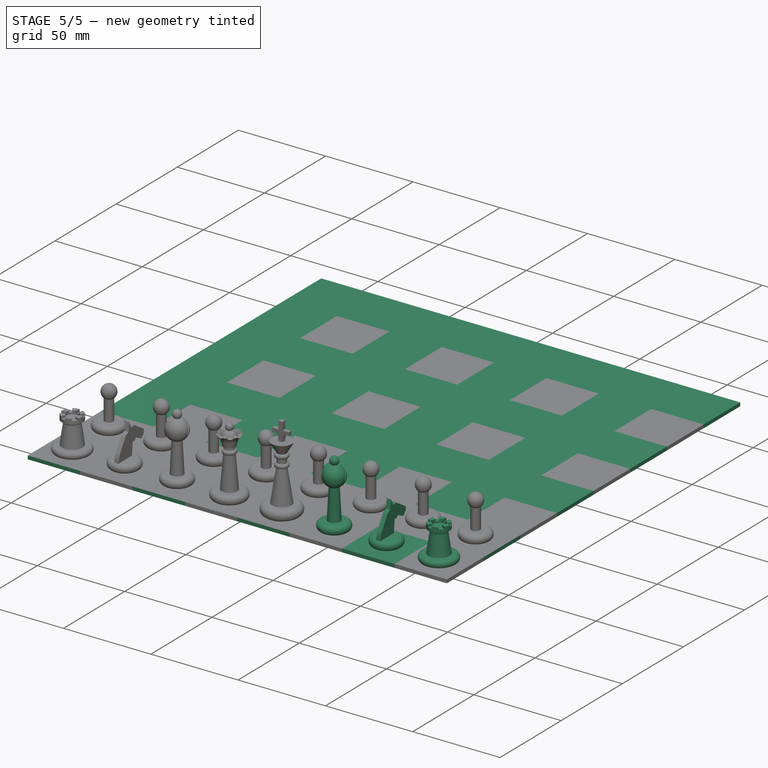
[diagram: stage 5 of 5 — iso view after this stage's code; geometry added in this stage tinted green]
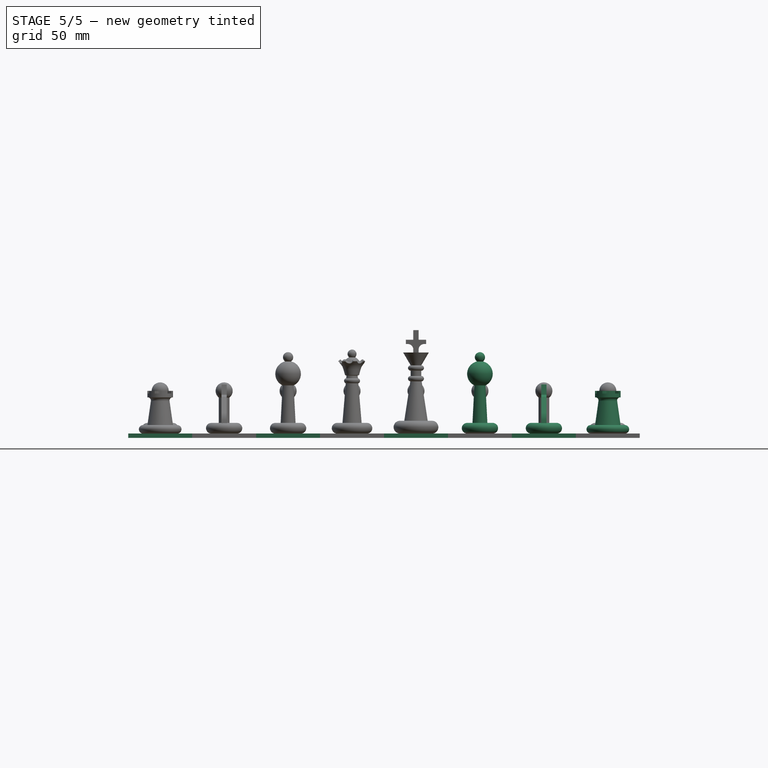
[diagram: stage 5 of 5 — front view after this stage's code; geometry added in this stage tinted green]
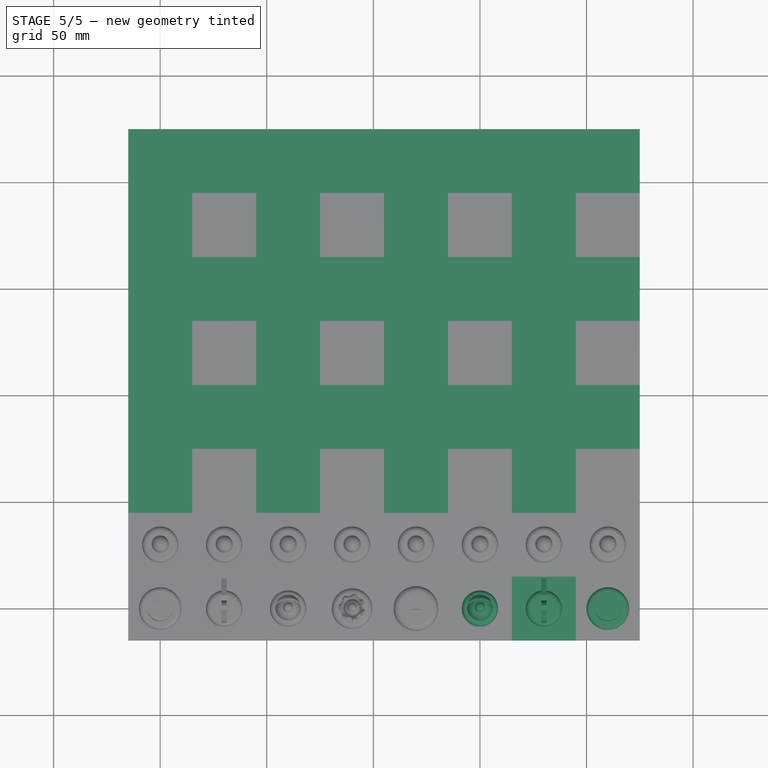
[diagram: stage 5 of 5 — top view after this stage's code; geometry added in this stage tinted green]
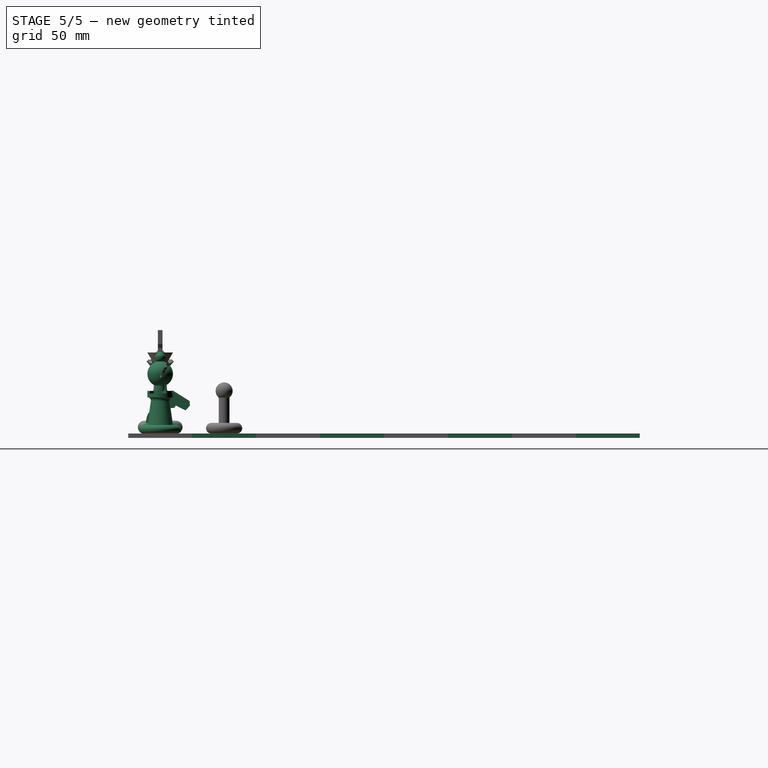
[diagram: stage 5 of 5 — right view after this stage's code; geometry added in this stage tinted green]
FEATURE [Sketcher::SketchObject] Sketch017
  sketch-geometry (4):
    g0: LineSegment StartX=-15 StartY=45 StartZ=0 EndX=15 EndY=45 EndZ=0
    g1: LineSegment StartX=15 StartY=45 StartZ=0 EndX=15 EndY=15 EndZ=0
    g2: LineSegment StartX=15 StartY=15 StartZ=0 EndX=-15 EndY=15 EndZ=0
    g3: LineSegment StartX=-15 StartY=15 StartZ=0 EndX=-15 EndY=45 EndZ=0
  constraints (12):
    c: Coincident(g0,g1)
    c: Coincident(g1,g2)
    c: Coincident(g2,g3)
    c: Coincident(g3,g0)
    c: Horizontal(g0)
    c: Horizontal(g2)
    c: Vertical(g1)
    c: Vertical(g3)
    c: Equal(g1,g0)
    c: DistanceX(g0,g0) = 30
    c: DistanceX(g0,g-1) = 15
    c: DistanceY(g-1,g2) = 15
FEATURE [PartDesign::Pad] Pad003
  Length = 2
  Length2 = 100
  Reversed = true
  Sketch = -> Sketch017
  Type = 0
FEATURE [Sketcher::SketchObject] Sketch018
  sketch-geometry (4):
    g0: LineSegment StartX=15 StartY=45 StartZ=0 EndX=45 EndY=45 EndZ=0
    g1: LineSegment StartX=45 StartY=45 StartZ=0 EndX=45 EndY=15 EndZ=0
    g2: LineSegment StartX=45 StartY=15 StartZ=0 EndX=15 EndY=15 EndZ=0
    g3: LineSegment StartX=15 StartY=15 StartZ=0 EndX=15 EndY=45 EndZ=0
  constraints (12):
    c: Coincident(g0,g1)
    c: Coincident(g1,g2)
    c: Coincident(g2,g3)
    c: Coincident(g3,g0)
    c: Horizontal(g0)
    c: Horizontal(g2)
    c: Vertical(g1)
    c: Vertical(g3)
    c: Equal(g0,g1)
    c: DistanceX(g0,g0) = 30
    c: DistanceX(g-1,g0) = 15
    c: DistanceY(g-1,g0) = 45
FEATURE [PartDesign::Pad] Pad004
  Length = 2
  Length2 = 100
  Reversed = true
  Sketch = -> Sketch018
  Type = 0
FEATURE [Part::FeaturePython] Array005  label="white_sq_array"  # Draft array (typed FeaturePython)
  Angle = 360
  ArrayType = 0
  Axis = (0,0,1)
  Base = -> Pad003
  Center = (0,0,0)
  Fuse = false
  IntervalAxis = (0,0,0)
  IntervalX = (60,0,0)
  IntervalY = (0,60,0)
  IntervalZ = (0,0,0)
  NumberPolar = 1
  NumberX = 4
  NumberY = 4
  NumberZ = 1
FEATURE [Part::FeaturePython] Array006  label="black_sq_array"  # Draft array (typed FeaturePython)
  Angle = 360
  ArrayType = 0
  Axis = (0,0,1)
  Base = -> Pad004
  Center = (0,0,0)
  Fuse = false
  IntervalAxis = (0,0,0)
  IntervalX = (60,0,0)
  IntervalY = (0,60,0)
  IntervalZ = (0,0,0)
  NumberPolar = 1
  NumberX = 4
  NumberY = 4
  NumberZ = 1
FEATURE [Sketcher::SketchObject] Sketch019
  sketch-geometry (4):
    g0: LineSegment StartX=-15 StartY=15 StartZ=0 EndX=15 EndY=15 EndZ=0
    g1: LineSegment StartX=15 StartY=15 StartZ=0 EndX=15 EndY=-15 EndZ=0
    g2: LineSegment StartX=15 StartY=-15 StartZ=0 EndX=-15 EndY=-15 EndZ=0
    g3: LineSegment StartX=-15 StartY=-15 StartZ=0 EndX=-15 EndY=15 EndZ=0
  constraints (12):
    c: Coincident(g0,g1)
    c: Coincident(g1,g2)
    c: Coincident(g2,g3)
    c: Coincident(g3,g0)
    c: Horizontal(g0)
    c: Horizontal(g2)
    c: Vertical(g1)
    c: Vertical(g3)
    c: Equal(g0,g3)
    c: DistanceX(g0,g0) = 30
    c: DistanceY(g-1,g0) = 15
    c: DistanceX(g-1,g0) = 15
FEATURE [PartDesign::Pad] Pad005
  Length = 2
  Length2 = 100
  Reversed = true
  Sketch = -> Sketch019
  Type = 0
FEATURE [Part::FeaturePython] Array007  label="black_sq_offset"  # Draft array (typed FeaturePython)
  Angle = 360
  ArrayType = 0
  Axis = (0,0,1)
  Base = -> Pad005
  Center = (0,0,0)
  Fuse = false
  IntervalAxis = (0,0,0)
  IntervalX = (60,0,0)
  IntervalY = (0,60,0)
  IntervalZ = (0,0,0)
  NumberPolar = 1
  NumberX = 4
  NumberY = 4
  NumberZ = 1
FEATURE [Part::FeaturePython] Array004  # Draft array (typed FeaturePython)
  Angle = 360
  ArrayType = 0
  Axis = (0,0,1)
  Base = -> Pocket003
  Center = (0,0,0)
  Fuse = false
  IntervalAxis = (0,0,0)
  IntervalX = (150,0,0)
  IntervalY = (0,1,0)
  IntervalZ = (0,0,0)
  NumberPolar = 1
  NumberX = 2
  NumberY = 1
  NumberZ = 1
FEATURE [Part::FeaturePython] Array001  # Draft array (typed FeaturePython)
  Angle = 360
  ArrayType = 0
  Axis = (0,0,1)
  Base = -> Pocket004
  Center = (0,0,0)
  Fuse = false
  IntervalAxis = (0,0,0)
  IntervalX = (90,0,0)
  IntervalY = (0,1,0)
  IntervalZ = (0,0,0)
  NumberPolar = 1
  NumberX = 2
  NumberY = 1
  NumberZ = 1
FEATURE [Part::FeaturePython] Array003  # Draft array (typed FeaturePython)
  Angle = 360
  ArrayType = 0
  Axis = (0,0,1)
  Base = -> Pocket007
  Center = (0,0,0)
  Fuse = false
  IntervalAxis = (0,0,0)
  IntervalX = (210,0,0)
  IntervalY = (0,1,0)
  IntervalZ = (0,0,0)
  NumberPolar = 1
  NumberX = 2
  NumberY = 1
  NumberZ = 1
FEATURE [App::DocumentObjectGroup] Group004  label="rook"
  Group = -> [Fillet,Fusion002,Pocket001,Pocket,Extrude002,Array003,Pocket007]
FEATURE [Raytracing::LuxFeature] Array003_View001
  Result = <blob: 225639 chars omitted>
  Source = -> Array003
  Transparency = 0
FEATURE [Raytracing::LuxProject] LuxProject
  Camera = # declares positon and view direction\n# Generated by FreeCAD (http://www.freecadweb.org/)\nLookAt 255.25 174.161 151.91 147.383 44.4268 24.2044 -0.279764 -0.545248 0.790213
  Group = -> [Array005_View001,Array006_View001,Array007_View,Array008_View,Array004_View001,Array003_View001,Fusion001_View001,Fusion_View001,Array001_View001]
FEATURE [Raytracing::RayFeature] Array003_View
  Result = <blob: 308269 chars omitted>
  Source = -> Array003
  Transparency = 0
FEATURE [Raytracing::RayProject] PovProject001
  Camera = // declares positon and view direction\n\n// Generated by FreeCAD (http://www.freecadweb.org/)\n#declare cam_location =  <273.227,166.023,134.628>;\n#declare cam_look_at  = <134.363,27.2686,19.9926>;\n#declare cam_sky      = <-0.320217,0.772971,-0.547702>;\n#declare cam_angle    = 45; \ncamera {\n  location  cam_location\n  look_at   cam_look_at\n  sky       cam_sky\n  angle     cam_angle \n  right x*800/600\n}
  Group = -> [Array008_View001,Array007_View001,Array006_View,Array005_View,Array001_View,Fusion_View,Fusion001_View,Array003_View,Array004_View]
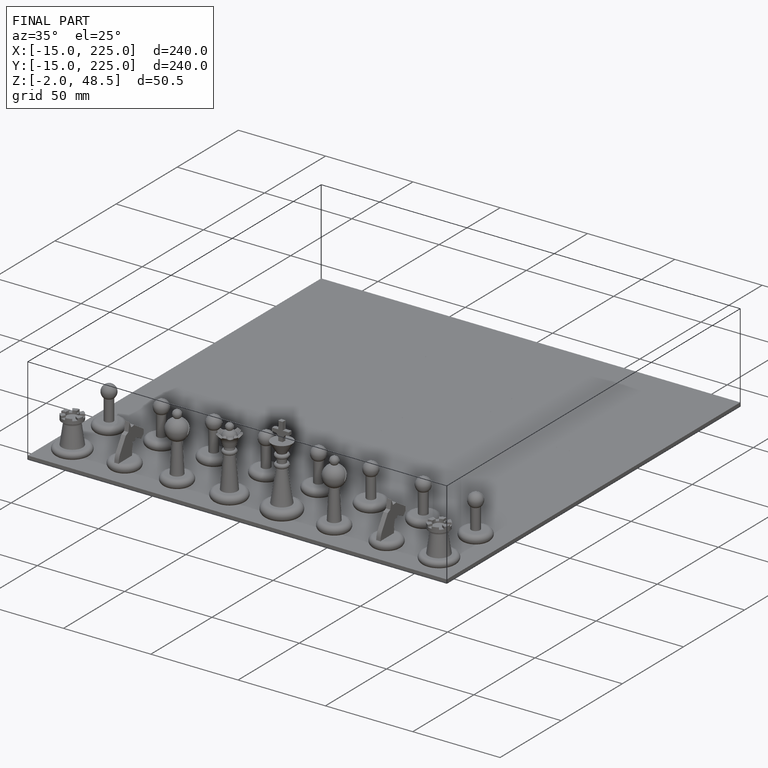
[diagram: finished part — iso view with bounding-box wireframe]
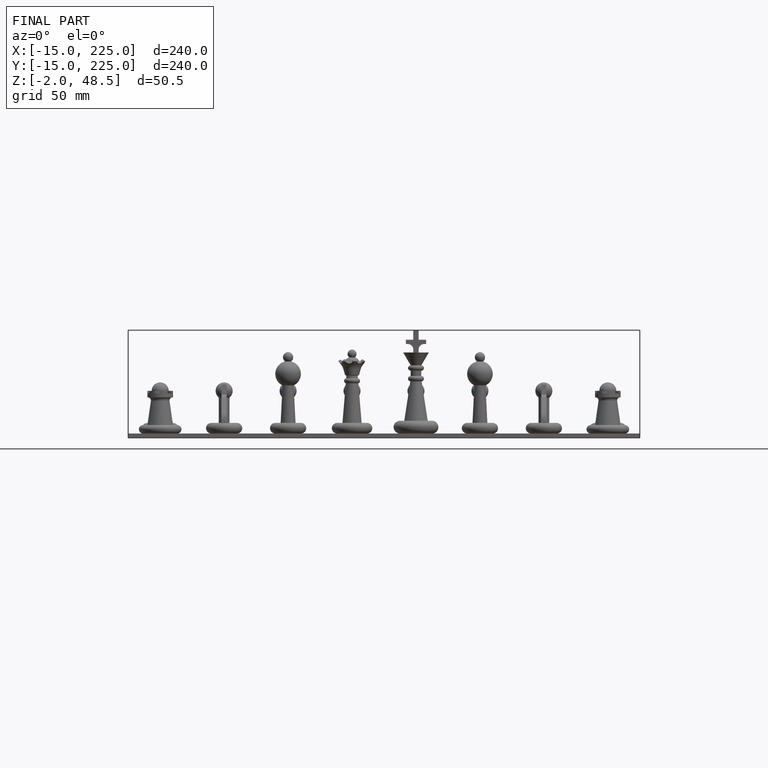
[diagram: finished part — front view with bounding-box wireframe]
